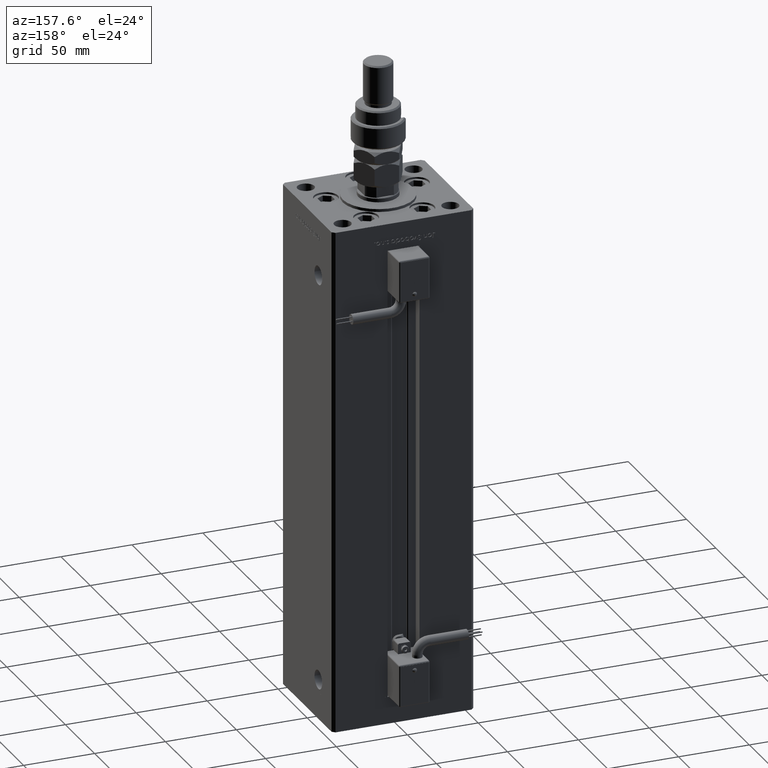
[diagram: clean part render]
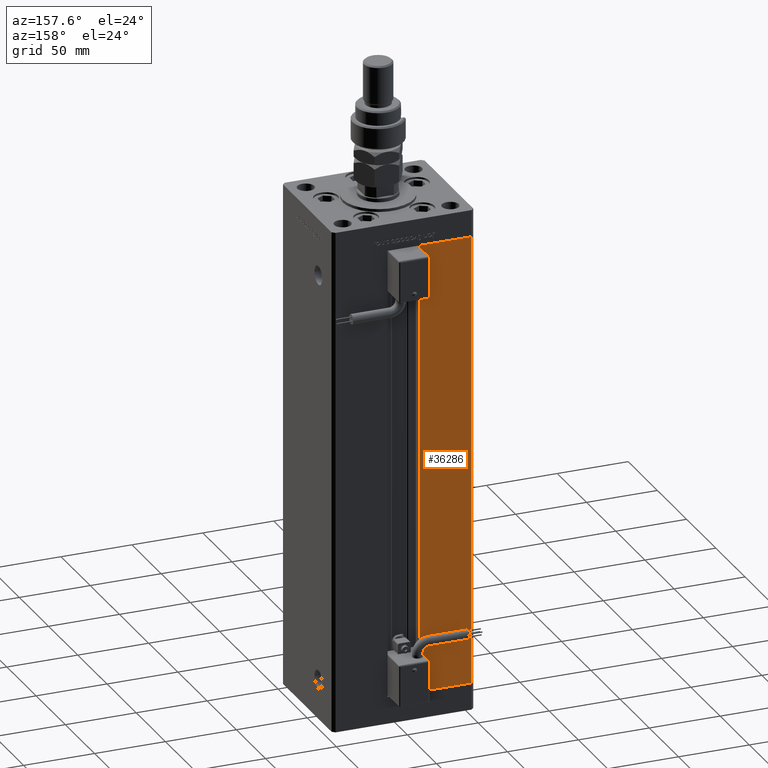
[diagram: same view with one face highlighted and labeled with its STEP entity id]
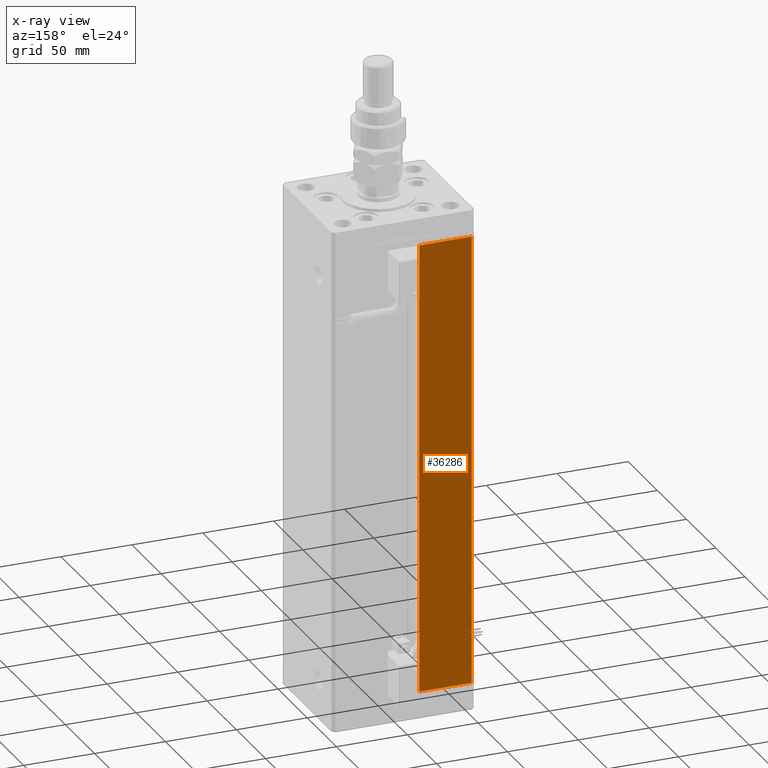
[diagram: x-ray of the same camera — body ghosted, the highlighted face saturated]
A machine part, auxiliary view. The second image highlights one B-rep face of the part: STEP entity #36286.
The next image is the same camera in x-ray: the body ghosted, the highlighted face saturated — about 0% of this face is hidden behind the body in this view.
In plain terms, the highlighted planar face has unit normal (0, -1, 0).
Its self-contained STEP definition (entity closure, byte-faithful):
#2306 = ORIENTED_EDGE ( 'NONE', *, *, #43942, .F. ) ;
#2427 = LINE ( 'NONE', #5971, #16587 ) ;
#2880 = VERTEX_POINT ( 'NONE', #26849 ) ;
#4550 = DIRECTION ( 'NONE',  ( 1.000000000000000000, 0.000000000000000000, 0.000000000000000000 ) ) ;
#5971 = CARTESIAN_POINT ( 'NONE',  ( -11.24999999999999822, 43.50000000000000000, 0.000000000000000000 ) ) ;
#7118 = DIRECTION ( 'NONE',  ( -1.000000000000000000, 0.000000000000000000, 0.000000000000000000 ) ) ;
#8802 = PLANE ( 'NONE',  #53273 ) ;
#9650 = CARTESIAN_POINT ( 'NONE',  ( -11.24999999999999822, 43.50000000000000000, 0.000000000000000000 ) ) ;
#10702 = CARTESIAN_POINT ( 'NONE',  ( -48.00000000000000711, 43.50000000000000000, 318.5000000000000000 ) ) ;
#13223 = VECTOR ( 'NONE', #4550, 1000.000000000000000 ) ;
#16587 = VECTOR ( 'NONE', #7118, 1000.000000000000000 ) ;
#18192 = FACE_OUTER_BOUND ( 'NONE', #46499, .T. ) ;
#19253 = DIRECTION ( 'NONE',  ( -0.000000000000000000, -0.000000000000000000, -1.000000000000000000 ) ) ;
#20833 = EDGE_CURVE ( 'NONE', #2880, #23329, #55000, .T. ) ;
#21117 = CARTESIAN_POINT ( 'NONE',  ( -48.00000000000000711, 43.50000000000000000, 0.000000000000000000 ) ) ;
#23329 = VERTEX_POINT ( 'NONE', #21117 ) ;
#26849 = CARTESIAN_POINT ( 'NONE',  ( -48.00000000000000711, 43.50000000000000000, 318.5000000000000000 ) ) ;
#27541 = CARTESIAN_POINT ( 'NONE',  ( -11.24999999999999822, 43.50000000000000000, 0.000000000000000000 ) ) ;
#27873 = DIRECTION ( 'NONE',  ( -0.000000000000000000, -0.000000000000000000, 1.000000000000000000 ) ) ;
#28243 = VERTEX_POINT ( 'NONE', #55393 ) ;
#31700 = DIRECTION ( 'NONE',  ( 0.000000000000000000, -1.000000000000000000, 0.000000000000000000 ) ) ;
#32307 = EDGE_CURVE ( 'NONE', #45701, #23329, #2427, .T. ) ;
#34942 = CARTESIAN_POINT ( 'NONE',  ( -11.24999999999999822, 43.50000000000000000, 318.5000000000000000 ) ) ;
#36286 = ADVANCED_FACE ( 'NONE', ( #18192 ), #8802, .F. ) ;
#38580 = VECTOR ( 'NONE', #27873, 1000.000000000000000 ) ;
#41219 = EDGE_CURVE ( 'NONE', #2880, #28243, #49982, .T. ) ;
#42689 = ORIENTED_EDGE ( 'NONE', *, *, #32307, .T. ) ;
#43942 = EDGE_CURVE ( 'NONE', #45701, #28243, #49830, .T. ) ;
#45578 = CARTESIAN_POINT ( 'NONE',  ( -11.24999999999999822, 43.50000000000000000, 318.5000000000000000 ) ) ;
#45701 = VERTEX_POINT ( 'NONE', #27541 ) ;
#46499 = EDGE_LOOP ( 'NONE', ( #56708, #2306, #42689, #46568 ) ) ;
#46568 = ORIENTED_EDGE ( 'NONE', *, *, #20833, .F. ) ;
#47159 = VECTOR ( 'NONE', #19253, 1000.000000000000000 ) ;
#49830 = LINE ( 'NONE', #9650, #38580 ) ;
#49982 = LINE ( 'NONE', #45578, #13223 ) ;
#53273 = AXIS2_PLACEMENT_3D ( 'NONE', #34942, #31700, #57782 ) ;
#55000 = LINE ( 'NONE', #10702, #47159 ) ;
#55393 = CARTESIAN_POINT ( 'NONE',  ( -11.24999999999999822, 43.50000000000000000, 318.5000000000000000 ) ) ;
#56708 = ORIENTED_EDGE ( 'NONE', *, *, #41219, .T. ) ;
#57782 = DIRECTION ( 'NONE',  ( 0.000000000000000000, -0.000000000000000000, -1.000000000000000000 ) ) ;